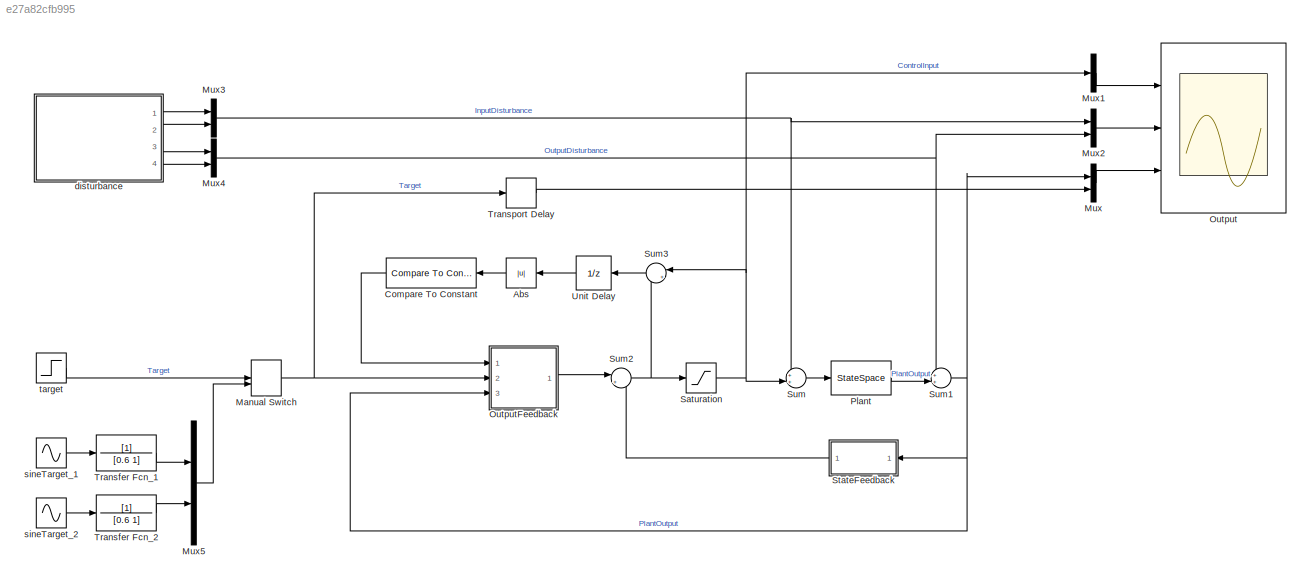
MODEL slx_e27a82cfb995
KIND model
CONFIG AbsTol = auto
CONFIG FixedStep = auto
CONFIG MaxStep = auto
CONFIG MinStep = auto
CONFIG RelTol = 1e-3
CONFIG SampleTimeConstraint = Unconstrained
CONFIG Solver = ode45
CONFIG SolverMode = Auto
CONFIG SolverName = ode45
CONFIG StartTime = 0.0
CONFIG StopTime = 30
BLOCK [Abs] Abs
  SaturateOnIntegerOverflow = off
BLOCK [Reference] Compare To Constant  REF=simulink/Logic and Bit
Operations/Compare
To Constant
  OutDataTypeStr = boolean
  Ports = [1, 1]
  SourceBlock = simulink/Logic and Bit\nOperations/Compare\nTo Constant
  SourceType = Compare To Constant
  ZeroCross = on
  const = eps
  relop = <
BLOCK [ManualSwitch] Manual Switch
  CurrentSetting = 0
BLOCK [Mux] Mux
  DisplayOption = bar
  Inputs = 2
  Ports = [2, 1]
BLOCK [Mux] Mux1
  DisplayOption = bar
  Inputs = 1
  Ports = [1, 1]
BLOCK [Mux] Mux2
  DisplayOption = bar
  Inputs = 2
  Ports = [2, 1]
BLOCK [Mux] Mux3
  DisplayOption = bar
  Inputs = 2
  Ports = [2, 1]
BLOCK [Mux] Mux4
  DisplayOption = bar
  Inputs = 2
  Ports = [2, 1]
BLOCK [Mux] Mux5
  DisplayOption = bar
  Inputs = 2
  Ports = [2, 1]
BLOCK [Scope] Output
  Floating = off
  LegendLocations = 0.78485     0.90948     0.16879    0.040554\n0.74133     0.55869     0.21231     0.07512\n0.78698      0.2435     0.19214     0.07512
  LimitDataPoints = off
  NumInputPorts = 3
  Ports = [3]
  SaveName = ScopeData1
  ShowLegends = on
  TimeRange = 30
  YMax = 3~0.5~2.5
  YMin = -3~-0.3~-2
  ZoomMode = xonly
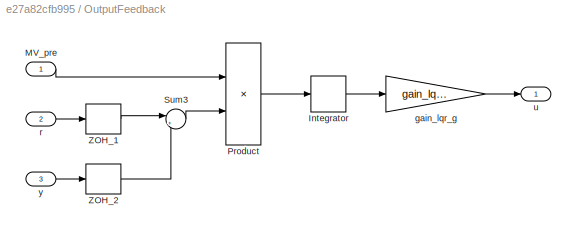
BLOCK [SubSystem] OutputFeedback
  Ports = [3, 1]
  RequestExecContextInheritance = off
BLOCK [DiscreteIntegrator] OutputFeedback/Integrator
  InitialConditionSetting = State (most efficient)
  Ports = [1, 1]
  SampleTime = dSamplingPeriod
BLOCK [Inport] OutputFeedback/MV_pre
  IconDisplay = Port number
BLOCK [Product] OutputFeedback/Product
  InputSameDT = off
  OutDataTypeStr = Inherit: Inherit via internal rule
  Ports = [2, 1]
  RndMeth = Floor
  SaturateOnIntegerOverflow = off
BLOCK [Sum] OutputFeedback/Sum3
  IconShape = round
  InputSameDT = off
  Inputs = |+-
  OutDataTypeStr = Inherit: Inherit via internal rule
  Ports = [2, 1]
  SaturateOnIntegerOverflow = off
BLOCK [ZeroOrderHold] OutputFeedback/ZOH_1
  SampleTime = dSamplingPeriod
BLOCK [ZeroOrderHold] OutputFeedback/ZOH_2
  SampleTime = dSamplingPeriod
BLOCK [Gain] OutputFeedback/gain_lqr_g
  Gain = gain_lqr_g
  Multiplication = Matrix(K*u)
  OutDataTypeStr = Inherit: Inherit via internal rule
  ParamDataTypeStr = Inherit: Inherit via internal rule
  SaturateOnIntegerOverflow = off
BLOCK [Inport] OutputFeedback/r
  IconDisplay = Port number
  Port = 2
BLOCK [Outport] OutputFeedback/u
  IconDisplay = Port number
BLOCK [Inport] OutputFeedback/y
  IconDisplay = Port number
  Port = 3
BLOCK [StateSpace] Plant
  A = plant.a
  B = plant.b
  C = plant.c
  D = plant.d
  Ports = [1, 1]
  X0 = 0
BLOCK [Saturate] Saturation
  InputPortMap = u0
  LowerLimit = -3
  Ports = [1, 1]
  UpperLimit = 3
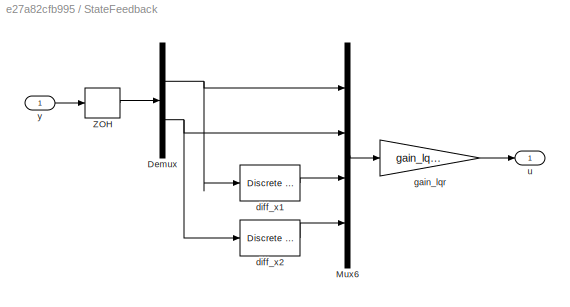
BLOCK [SubSystem] StateFeedback
  Ports = [1, 1]
  RequestExecContextInheritance = off
BLOCK [Demux] StateFeedback/Demux
  DisplayOption = bar
  Outputs = 2
  Ports = [1, 2]
BLOCK [Mux] StateFeedback/Mux6
  DisplayOption = bar
  Ports = [4, 1]
BLOCK [ZeroOrderHold] StateFeedback/ZOH
  SampleTime = dSamplingPeriod
BLOCK [Reference] StateFeedback/diff_x1  REF=simulink/Discrete/Discrete Derivative
  DoSatur = off
  ICPrevScaledInput = 0.0
  InputProcessing = Inherited
  LockScale = off
  OutDataType = fixdt(1, 16)
  OutDataTypeStr = Inherit: Inherit via internal rule
  OutMax = []
  OutMin = []
  OutScaling = 2^-10
  OutputDataTypeScalingMode = Inherit via internal rule
  Ports = [1, 1]
  RndMeth = Floor
  SourceBlock = simulink/Discrete/Discrete Derivative
  SourceType = Discrete Derivative
  gainval = 1.0
BLOCK [Reference] StateFeedback/diff_x2  REF=simulink/Discrete/Discrete Derivative
  DoSatur = off
  ICPrevScaledInput = 0.0
  InputProcessing = Inherited
  LockScale = off
  OutDataType = fixdt(1, 16)
  OutDataTypeStr = Inherit: Inherit via internal rule
  OutMax = []
  OutMin = []
  OutScaling = 2^-10
  OutputDataTypeScalingMode = Inherit via internal rule
  Ports = [1, 1]
  RndMeth = Floor
  SourceBlock = simulink/Discrete/Discrete Derivative
  SourceType = Discrete Derivative
  gainval = 1.0
BLOCK [Gain] StateFeedback/gain_lqr
  Gain = gain_lqr_f
  Multiplication = Matrix(K*u)
  OutDataTypeStr = Inherit: Inherit via internal rule
  ParamDataTypeStr = Inherit: Inherit via internal rule
  SaturateOnIntegerOverflow = off
BLOCK [Outport] StateFeedback/u
  IconDisplay = Port number
BLOCK [Inport] StateFeedback/y
  IconDisplay = Port number
BLOCK [Sum] Sum
  IconShape = round
  InputSameDT = off
  Inputs = ++|
  OutDataTypeStr = Inherit: Inherit via internal rule
  Ports = [2, 1]
  SaturateOnIntegerOverflow = off
BLOCK [Sum] Sum1
  IconShape = round
  InputSameDT = off
  Inputs = ++|
  OutDataTypeStr = Inherit: Inherit via internal rule
  Ports = [2, 1]
  SaturateOnIntegerOverflow = off
BLOCK [Sum] Sum2
  IconShape = round
  InputSameDT = off
  Inputs = |+-
  OutDataTypeStr = Inherit: Inherit via internal rule
  Ports = [2, 1]
  SaturateOnIntegerOverflow = off
BLOCK [Sum] Sum3
  IconShape = round
  InputSameDT = off
  Inputs = |+-
  OutDataTypeStr = Inherit: Inherit via internal rule
  Ports = [2, 1]
  SaturateOnIntegerOverflow = off
BLOCK [TransferFcn] Transfer Fcn_1
  Denominator = [0.6 1]
BLOCK [TransferFcn] Transfer Fcn_2
  Denominator = [0.6 1]
BLOCK [TransportDelay] Transport Delay
  Commented = through
  DelayTime = 0.45
  Ports = [1, 1]
BLOCK [UnitDelay] Unit Delay
  InputProcessing = Elements as channels (sample based)
  SampleTime = dSamplingPeriod
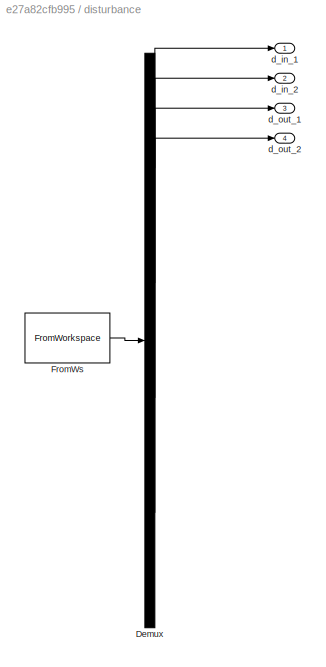
BLOCK [SubSystem] disturbance
  ClipboardFcn = sigbuilder_block('clipboard');
  CloseFcn = sigbuilder_block('close');
  ContinueFcn = sigbuilder_block('continue');
  CopyFcn = sigbuilder_block('copy');
  DeleteFcn = sigbuilder_block('delete');
  LoadFcn = sigbuilder_block('load');
  MaskHideContents = on
  ModelCloseFcn = sigbuilder_block('modelClose');
  NameChangeFcn = sigbuilder_block('namechange');
  OpenFcn = sigbuilder_block('open',[437.6 199.2 550.4 400 ]);
  PauseFcn = sigbuilder_block('pause');
  Ports = [0, 4]
  PreSaveFcn = sigbuilder_block('preSave');
  RequestExecContextInheritance = off
  StartFcn = sigbuilder_block('start');
  StopFcn = sigbuilder_block('stop');
  Tag = STV Subsys
BLOCK [Demux] disturbance/Demux
  Ports = [1, 4]
  Tag = STV Demux
BLOCK [FromWorkspace] disturbance/FromWs
  SampleTime = 0
  Tag = STV FromWs
  VariableName = tuvar
  ZeroCross = on
BLOCK [Outport] disturbance/d_in_1
  IconDisplay = Port number
  Tag = STV Outport
BLOCK [Outport] disturbance/d_in_2
  IconDisplay = Port number
  Port = 2
  Tag = STV Outport
BLOCK [Outport] disturbance/d_out_1
  IconDisplay = Port number
  Port = 3
  Tag = STV Outport
BLOCK [Outport] disturbance/d_out_2
  IconDisplay = Port number
  Port = 4
  Tag = STV Outport
BLOCK [Sin] sineTarget_1
  Frequency = 2*pi*0.2
  Ports = [0, 1]
  SampleTime = 0
BLOCK [Sin] sineTarget_2
  Amplitude = 2
  Frequency = 2*pi*0.1
  Phase = -pi/4
  Ports = [0, 1]
  SampleTime = 0
BLOCK [Step] target
  After = [1;2]
  Before = [0;0]
  SampleTime = 0
  Time = [1;5]
LINE Abs:1 -> Compare To Constant:1
LINE Compare To Constant:1 -> OutputFeedback:1
NET Manual Switch:1 -> OutputFeedback:2, Transport Delay:1
LINE Mux1:1 -> Output:1
LINE Mux2:1 -> Output:2
NET Mux3:1 -> Mux2:1, Sum:1
NET Mux4:1 -> Mux2:2, Sum1:1
LINE Mux5:1 -> Manual Switch:2
LINE Mux:1 -> Output:3
LINE OutputFeedback/Integrator:1 -> OutputFeedback/gain_lqr_g:1
LINE OutputFeedback/MV_pre:1 -> OutputFeedback/Product:1
LINE OutputFeedback/Product:1 -> OutputFeedback/Integrator:1
LINE OutputFeedback/Sum3:1 -> OutputFeedback/Product:2
LINE OutputFeedback/ZOH_1:1 -> OutputFeedback/Sum3:1
LINE OutputFeedback/ZOH_2:1 -> OutputFeedback/Sum3:2
LINE OutputFeedback/gain_lqr_g:1 -> OutputFeedback/u:1
LINE OutputFeedback/r:1 -> OutputFeedback/ZOH_1:1
LINE OutputFeedback/y:1 -> OutputFeedback/ZOH_2:1
LINE OutputFeedback:1 -> Sum2:1
LINE Plant:1 -> Sum1:2
NET Saturation:1 -> Mux1:1, Sum3:1, Sum:2
NET StateFeedback/Demux:1 -> StateFeedback/Mux6:1, StateFeedback/diff_x1:1
NET StateFeedback/Demux:2 -> StateFeedback/Mux6:2, StateFeedback/diff_x2:1
LINE StateFeedback/Mux6:1 -> StateFeedback/gain_lqr:1
LINE StateFeedback/ZOH:1 -> StateFeedback/Demux:1
LINE StateFeedback/diff_x1:1 -> StateFeedback/Mux6:3
LINE StateFeedback/diff_x2:1 -> StateFeedback/Mux6:4
LINE StateFeedback/gain_lqr:1 -> StateFeedback/u:1
LINE StateFeedback/y:1 -> StateFeedback/ZOH:1
LINE StateFeedback:1 -> Sum2:2
NET Sum1:1 -> Mux:1, OutputFeedback:3, StateFeedback:1
NET Sum2:1 -> Saturation:1, Sum3:2
LINE Sum3:1 -> Unit Delay:1
LINE Sum:1 -> Plant:1
LINE Transfer Fcn_1:1 -> Mux5:1
LINE Transfer Fcn_2:1 -> Mux5:2
LINE Transport Delay:1 -> Mux:2
LINE Unit Delay:1 -> Abs:1
LINE disturbance:1 -> Mux3:1
LINE disturbance:2 -> Mux3:2
LINE disturbance:3 -> Mux4:1
LINE disturbance:4 -> Mux4:2
LINE sineTarget_1:1 -> Transfer Fcn_1:1
LINE sineTarget_2:1 -> Transfer Fcn_2:1
LINE target:1 -> Manual Switch:1
note: NET lines group one-source signal fan-out (src -> all destinations, sorted); 1:1 wires keep LINE
